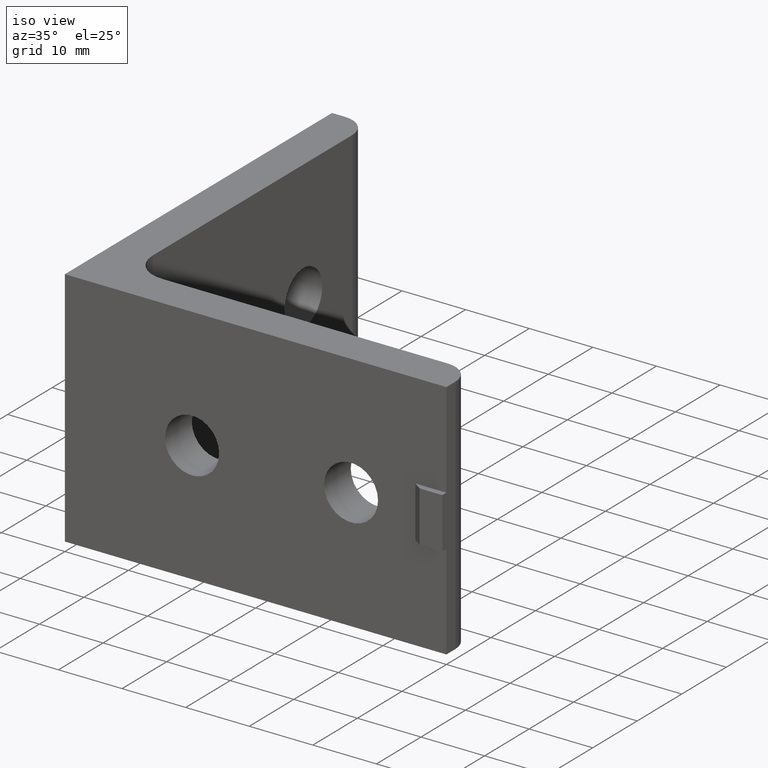
[diagram: clean part render]
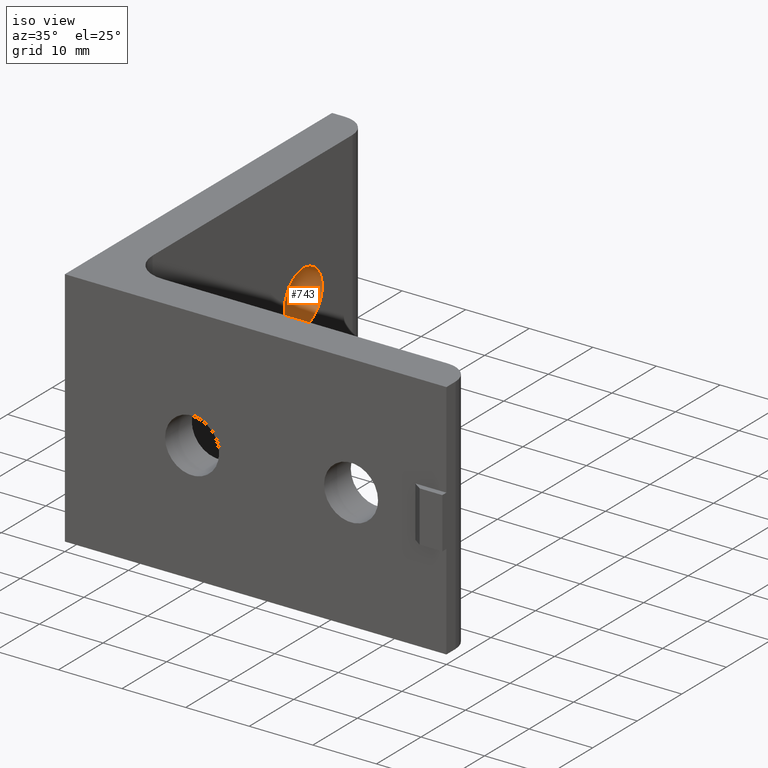
[diagram: same view with one face highlighted and labeled with its STEP entity id]
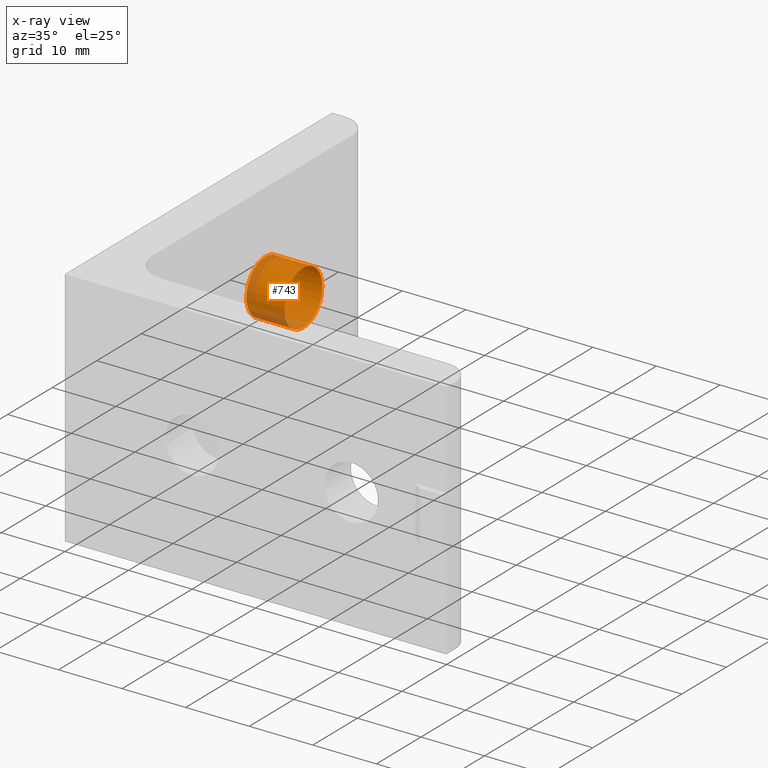
[diagram: x-ray of the same camera — body ghosted, the highlighted face saturated]
A machine part, iso view. The second image highlights one B-rep face of the part: STEP entity #743.
The next image is the same camera in x-ray: the body ghosted, the highlighted face saturated — about 24% of this face is hidden behind the body in this view.
In plain terms, the highlighted cylindrical surface (bore or boss wall) has radius 4.25 mm, axis along (-1, 0, 0).
Its self-contained STEP definition (entity closure, byte-faithful):
#303=CARTESIAN_POINT('',(6.000001230408543,40.749994675097241,0.055967317574844));
#304=VERTEX_POINT('',#303);
#305=CARTESIAN_POINT('',(6.000001230408543,49.249988920465057,0.055967317574844));
#306=VERTEX_POINT('',#305);
#307=CARTESIAN_POINT('',(6.000001230408543,44.999991797781149,0.055967317574844));
#308=DIRECTION('',(-1.0,0.0,0.0));
#309=DIRECTION('',(0.0,-1.0,0.0));
#310=AXIS2_PLACEMENT_3D('',#307,#308,#309);
#311=CIRCLE('',#310,4.249997122683908);
#312=EDGE_CURVE('',#304,#306,#311,.T.);
#314=CARTESIAN_POINT('',(6.000001230408543,44.999991797781149,0.055967317574844));
#315=DIRECTION('',(-1.0,0.0,0.0));
#316=DIRECTION('',(0.0,-1.0,0.0));
#317=AXIS2_PLACEMENT_3D('',#314,#315,#316);
#318=CIRCLE('',#317,4.249997122683908);
#319=EDGE_CURVE('',#306,#304,#318,.T.);
#614=CARTESIAN_POINT('',(0.0,49.249988920465057,0.055967317574844));
#615=VERTEX_POINT('',#614);
#616=CARTESIAN_POINT('',(0.0,40.749994675097241,0.055967317574844));
#617=VERTEX_POINT('',#616);
#618=CARTESIAN_POINT('',(0.0,44.999991797781149,0.055967317574844));
#619=DIRECTION('',(-1.0,0.0,0.0));
#620=DIRECTION('',(0.0,-1.0,0.0));
#621=AXIS2_PLACEMENT_3D('',#618,#619,#620);
#622=CIRCLE('',#621,4.249997122683908);
#623=EDGE_CURVE('',#615,#617,#622,.T.);
#625=CARTESIAN_POINT('',(0.0,44.999991797781149,0.055967317574844));
#626=DIRECTION('',(-1.0,0.0,0.0));
#627=DIRECTION('',(0.0,-1.0,0.0));
#628=AXIS2_PLACEMENT_3D('',#625,#626,#627);
#629=CIRCLE('',#628,4.249997122683908);
#630=EDGE_CURVE('',#617,#615,#629,.T.);
#725=CARTESIAN_POINT('',(0.0,44.999991797781149,0.055967317574844));
#726=DIRECTION('',(-1.0,0.0,0.0));
#727=DIRECTION('',(0.0,-1.0,0.0));
#728=AXIS2_PLACEMENT_3D('',#725,#726,#727);
#729=CYLINDRICAL_SURFACE('',#728,4.249997122683908);
#730=CARTESIAN_POINT('',(0.0,40.749994675097241,0.055967317574844));
#731=DIRECTION('',(1.0,0.0,0.0));
#732=VECTOR('',#731,6.000001230408543);
#733=LINE('',#730,#732);
#734=EDGE_CURVE('',#617,#304,#733,.T.);
#735=ORIENTED_EDGE('',*,*,#734,.T.);
#736=ORIENTED_EDGE('',*,*,#319,.F.);
#737=ORIENTED_EDGE('',*,*,#312,.F.);
#738=ORIENTED_EDGE('',*,*,#734,.F.);
#739=ORIENTED_EDGE('',*,*,#630,.T.);
#740=ORIENTED_EDGE('',*,*,#623,.T.);
#741=EDGE_LOOP('',(#735,#736,#737,#738,#739,#740));
#742=FACE_OUTER_BOUND('',#741,.T.);
#743=ADVANCED_FACE('',(#742),#729,.F.);